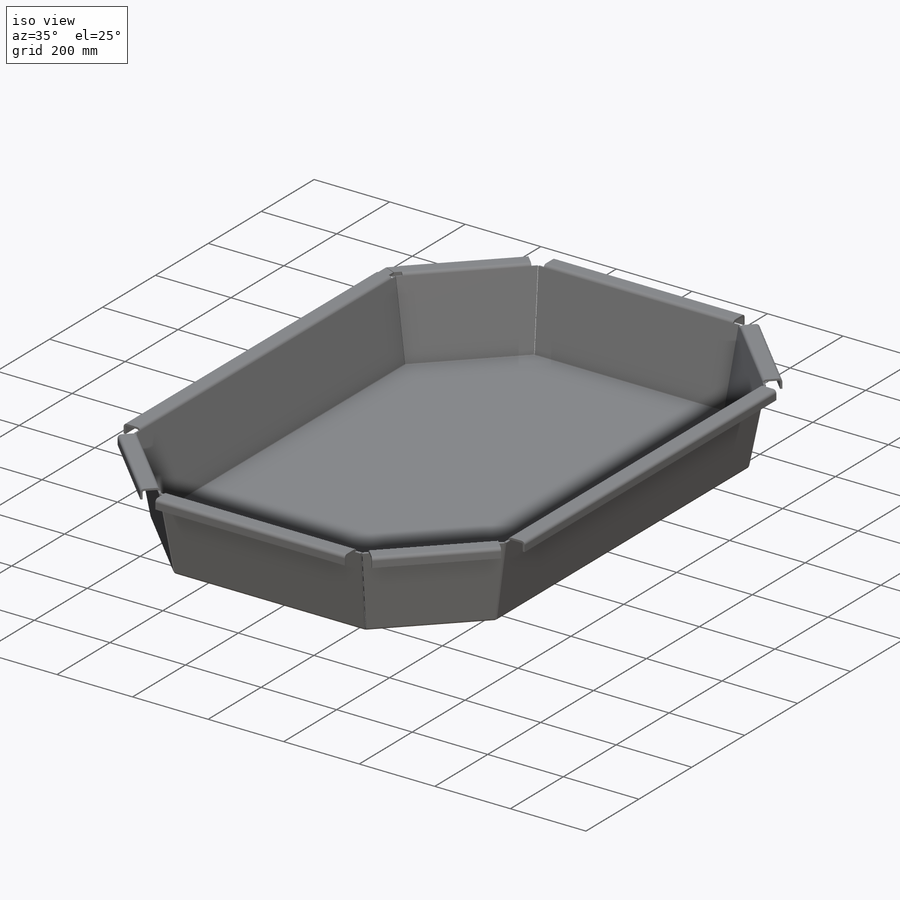
[diagram: iso view]
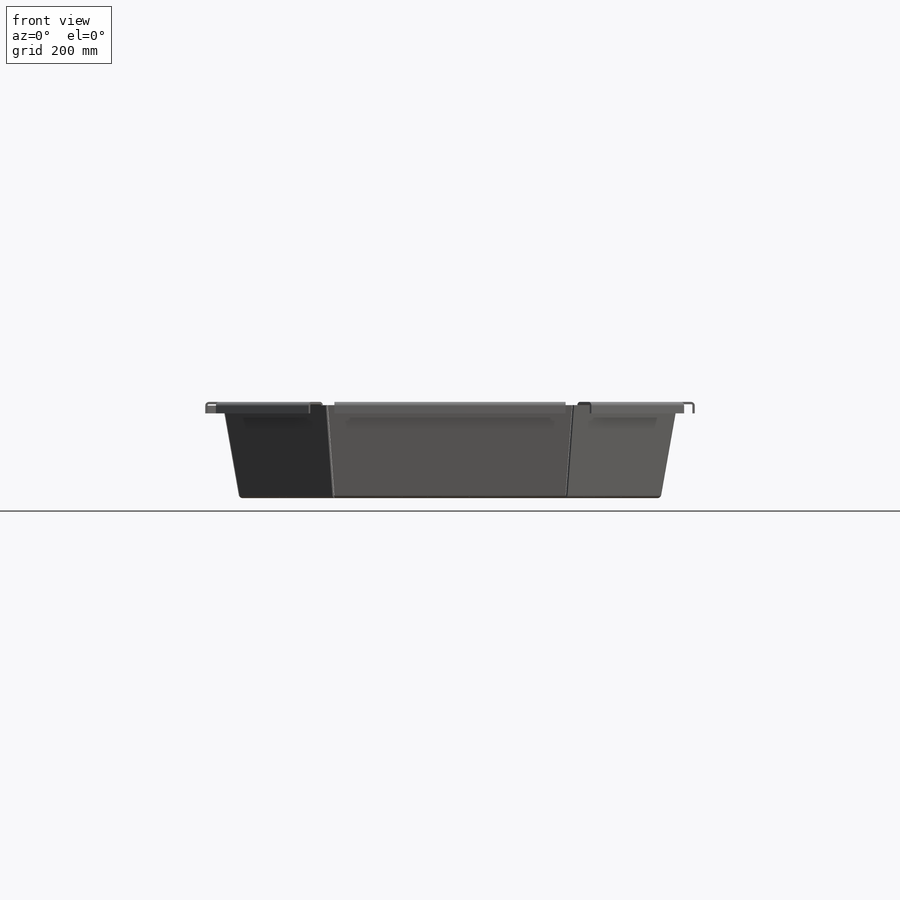
[diagram: front view]
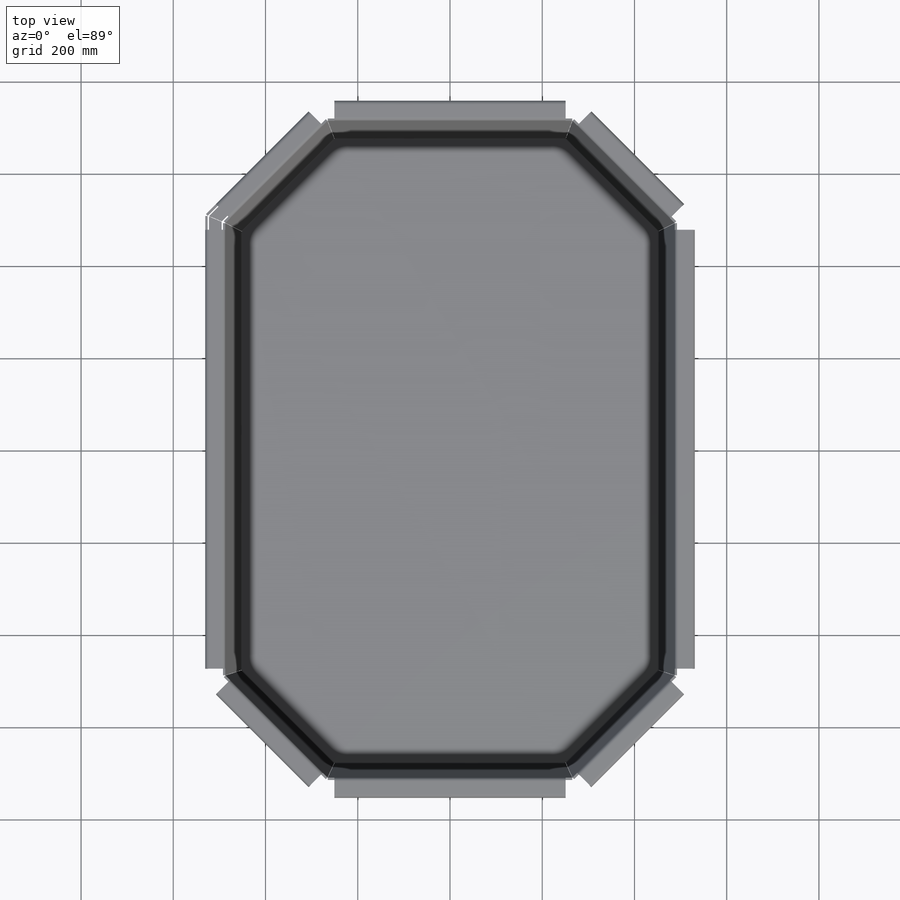
[diagram: top view]
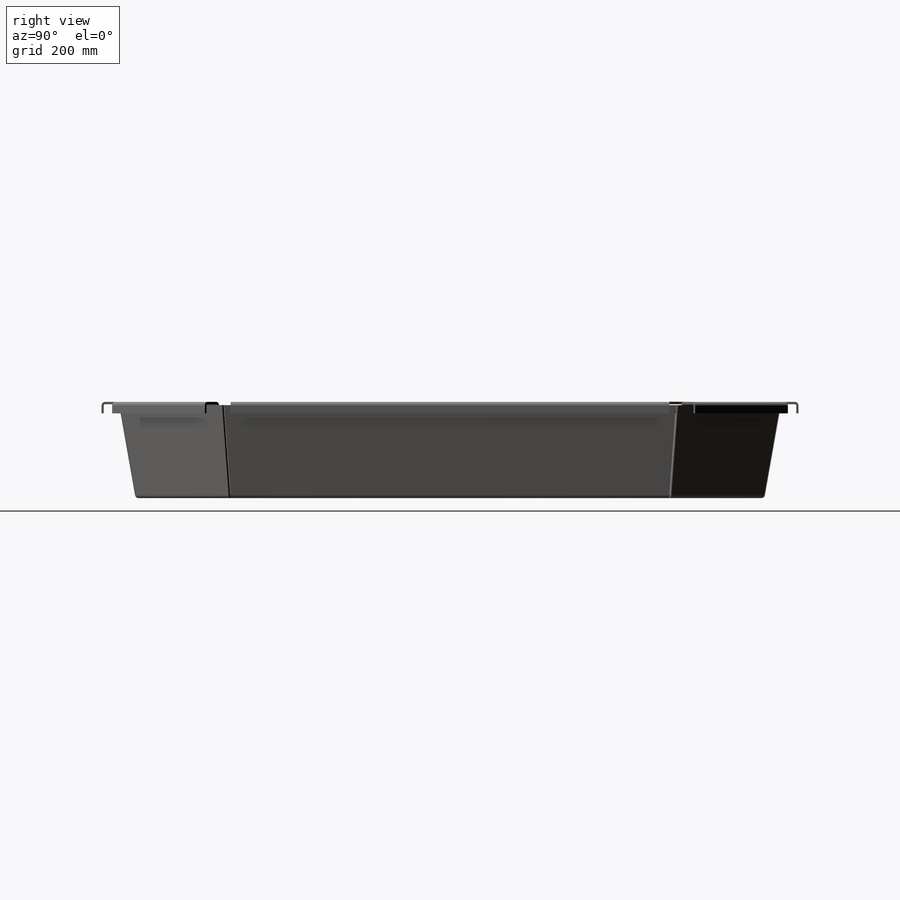
[diagram: right view]
SOLIDWORKS PART (.sldprt)
format: sldprt  version: not decoded by parser v0  size: 1,313,280 bytes
history: native  units: mm
features: sketch x44, sheet_metal_op x30, plane x4, thread x4, hole x2, material x1 + 6 further entries (+9 scaffold rows collapsed; 6 parser-record rows omitted)
feature tree (106):
  scaffold x9  (default folders/planes/origin — collapsed)
  material  "1.4301 (X5CrNi18-10)"
  plane  "Ebene vorne"
  plane  "Ebene oben"
  plane  "Ebene rechts"
  sketch  "Skizze1"  dims[c1.D1=~28.152497mm c2.D1=~47.489553deg c3.D1=110.0mm c3.D2=1180.0mm c3.D3=330.0mm c3.D4=~785.398163mm c4.D1=200.0mm c4.D2=1350.0mm c4.D3=900.0mm c5.D1=3.0mm c5.D2=0.5 c5.D3=0.0deg c5.D6=~28.64789deg]
  sheet_metal_op  "Basis-Blech1"
  sketch  "Skizze8"
  sketch  "Skizze16"
  sketch  "Skizze18"
  sketch  "Skizze20"
  sketch  "Skizze22"
  sketch  "Skizze106"
  sketch  "Skizze108"
  sketch  "Skizze110"  dims[D1=3.0mm D4=~1396.263402mm D5=1.0 D8=~0.143239deg D9=~0.143239deg]
  sheet_metal_op  "Kantenbiegung2"
  sheet_metal_op  "Kantenbiegung3"
  sheet_metal_op  "Kantenbiegung4"
  sheet_metal_op  "Kantenbiegung5"
  sheet_metal_op  "Kantenbiegung33"
  sheet_metal_op  "Kantenbiegung34"
  sheet_metal_op  "Kantenbiegung35"  Kante-Lasche4=0
  sketch  "Skizze74"
  sketch  "Skizze81"
  sketch  "Skizze83"
  sketch  "Skizze93"
  sketch  "Skizze95"
  sketch  "Skizze112"
  sketch  "Skizze114"
  sketch  "Skizze116"
  sheet_metal_op  "Kantenbiegung21"
  sheet_metal_op  "Kantenbiegung23"
  sheet_metal_op  "Kantenbiegung24"
  sheet_metal_op  "Kantenbiegung29"
  sheet_metal_op  "Kantenbiegung30"
  sheet_metal_op  "Kantenbiegung36"
  sheet_metal_op  "Kantenbiegung37"
  sheet_metal_op  "Kantenbiegung38"  Kante-Lasche5=0
  sketch  "Skizze79"
  sketch  "Skizze87"
  sketch  "Skizze89"
  sketch  "Skizze97"
  sketch  "Skizze99"
  sketch  "Skizze118"
  sketch  "Skizze120"
  sketch  "Skizze122"
  sheet_metal_op  "Kantenbiegung22"
  sheet_metal_op  "Kantenbiegung26"
  sheet_metal_op  "Kantenbiegung27"
  sheet_metal_op  "Kantenbiegung31"
  sheet_metal_op  "Kantenbiegung32"
  sheet_metal_op  "Kantenbiegung39"
  sheet_metal_op  "Kantenbiegung40"
  sheet_metal_op  "Kantenbiegung41"
  sketch  "Skizze100"  dims[D1=650.0mm D2=1000.0mm D3=1000.0mm]
  hole  "M10 Gewindebohrung1"  Diameter=8.5mm Depth=209.720321mm
  sketch  "Skizze104"
  sketch  "Skizze103"  dims[hole-wizard template sketch: 44 standard entries collapsed; hole parameters kept: c7.Bohrerdurchmesser=8.5mm c7.Bohrungstiefe=~209.720321mm]
  thread  "Bohrungsgewinde1"  Diameter=10mm  [1 undecoded]
  thread  "Bohrungsgewinde2"  Diameter=10mm  [1 undecoded]
  thread  "Bohrungsgewinde3"  Diameter=10mm  [1 undecoded]
  thread  "Bohrungsgewinde4"  Diameter=10mm  [1 undecoded]
  plane  "Ebene1"  Offset=25mm
  hole  "Geschlossene Ecke9"  Diameter=2000mm
  sketch  "Biegung-Linien1"
  sketch  "Rahmen1"
  sheet_metal_op  "Blech(1)"
  "Abwicklung(1)"
  sketch  "Biegung-Linien2"
  sketch  "Rahmen2"
  parser-record x6  (decoder bookkeeping rows leaked as tree rows — omitted from the tree; the rows remain in map.json)
  sheet_metal_op  "Blech(2)"
  "Abwicklung(1)"
  sketch  "Biegung-Linien3"
  sketch  "Rahmen3"
  sheet_metal_op  "Blech(5)"
  "Abwicklung(1)"
  sketch  "Biegung-Linien6"
  sketch  "Rahmen6"
  sheet_metal_op  "Blech(6)"
  "Abwicklung(1)"
  sketch  "Biegung-Linien7"
  sketch  "Rahmen7"
  sketch  "Skizze100-2"  dims[D1=650.0mm D2=1000.0mm D3=1000.0mm]
  sheet_metal_op  "Blech(7)"
  "Abwicklung(1)"
  sketch  "Biegung-Linien8"
  sketch  "Rahmen8"
  sketch  "Skizze100-1"  dims[D1=650.0mm D2=1000.0mm D3=1000.0mm]
  sheet_metal_op  "Blech(8)"
  "Abwicklung(1)"
  sketch  "Biegung-Linien9"
  sketch  "Rahmen9"
decode coverage: 14 of 80 modeling features carry decoded parameters; 6 rows unclassified (native names shown)
note: ~ marks probable driven/reference dimensions
note: 4 parameter values undecoded
note: suppression state not decoded; provenance and decode notes live in map.json
